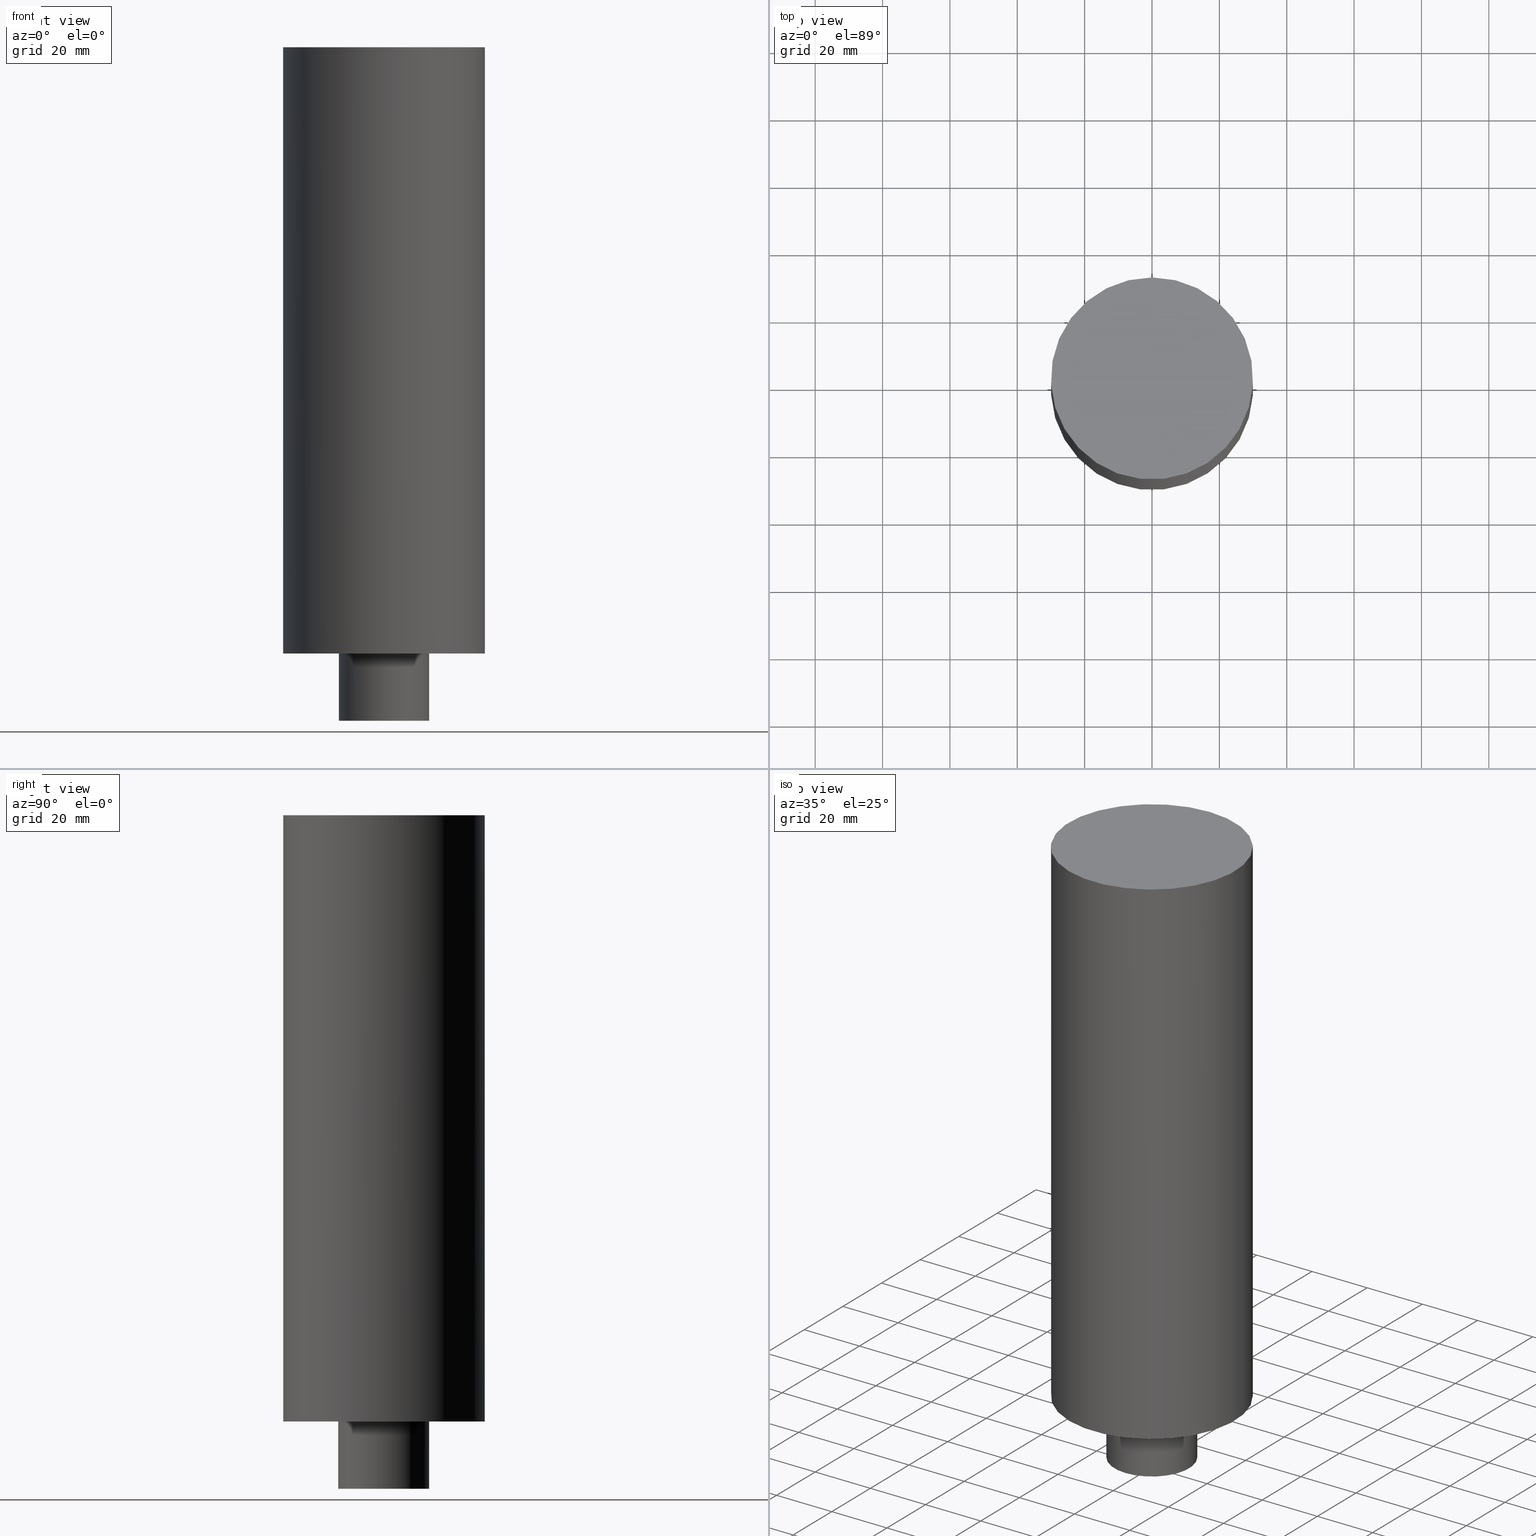
[diagram: canonical four-view strip — front | top / right | iso, engineering-drawing reading convention]
A machine part, canonical four-view strip (front | top / right | iso — engineering-drawing reading convention). The complete STEP part file that produces these views, byte-faithful:
ISO-10303-21;
HEADER;
FILE_DESCRIPTION((''),'1');
FILE_NAME('U:/Translate/BIG-HP/\X2\30C030A630F330ED30FC30C930C730FC30BF\X0\/201309/BT-BBT/BT-BBT50/10_\X2\9632632F6A5F69CB51858535FF7DFF8FFF70FF84FF80FF9EFF9DFF8AFF9FFF70\X0\/11_\X2\30D530A130A430B930DF30EB30A230FC30D0\X0\FM\X2\578B\X0\/02_\X2\FF7DFF8FFF70FF84FF80FF9EFF9DFF8AFF9FFF70FF80FF9EFF9DFF8AFF9FFF70FF8DFF6FFF84FF9E\X0\/SDF36-FMH27DP-60-180.stp','2013-10-16T08:40:45',(''),(''),'Spatial Interop R18','Kubotek KeyCreator V8.5.1 (14335)',' ');
FILE_SCHEMA(('CONFIG_CONTROL_DESIGN'));
ENDSEC;
DATA;
#1=DESIGN_CONTEXT('',#27,'design');
#2=APPLICATION_PROTOCOL_DEFINITION('INTERNATIONAL STANDARD','config_control_design',1994,#27);
#3=PRODUCT_CATEGORY_RELATIONSHIP('NONE','NONE',#28,#29);
#4=DATE_AND_TIME(#30,#31);
#5=DATE_TIME_ROLE('creation_date');
#6=DATE_TIME_ROLE('classification_date');
#7=PERSON_AND_ORGANIZATION_ROLE('creator');
#8=PERSON_AND_ORGANIZATION_ROLE('design_supplier');
#9=PERSON_AND_ORGANIZATION_ROLE('classification_officer');
#10=PERSON_AND_ORGANIZATION_ROLE('design_owner');
#11=APPROVAL_PERSON_ORGANIZATION(#32,#33,#34);
#12=APPROVAL_DATE_TIME(#4,#33);
#13=CC_DESIGN_APPROVAL(#33,(#35,#36,#37));
#14=CC_DESIGN_DATE_AND_TIME_ASSIGNMENT(#4,#5,(#37));
#15=CC_DESIGN_DATE_AND_TIME_ASSIGNMENT(#4,#6,(#35));
#16=CC_DESIGN_PERSON_AND_ORGANIZATION_ASSIGNMENT(#32,#10,(#38));
#17=CC_DESIGN_PERSON_AND_ORGANIZATION_ASSIGNMENT(#32,#7,(#37));
#18=CC_DESIGN_PERSON_AND_ORGANIZATION_ASSIGNMENT(#32,#7,(#36));
#19=CC_DESIGN_PERSON_AND_ORGANIZATION_ASSIGNMENT(#32,#8,(#36));
#20=CC_DESIGN_SECURITY_CLASSIFICATION(#35,(#36));
#21=CC_DESIGN_PERSON_AND_ORGANIZATION_ASSIGNMENT(#32,#9,(#35));
#22=SHAPE_DEFINITION_REPRESENTATION(#39,#40);
#23= (GEOMETRIC_REPRESENTATION_CONTEXT(3)GLOBAL_UNCERTAINTY_ASSIGNED_CONTEXT((#43))GLOBAL_UNIT_ASSIGNED_CONTEXT((#45,#46,#47))REPRESENTATION_CONTEXT('NONE','WORKSPACE'));
#27=APPLICATION_CONTEXT('CONFIGURATION CONTROLLED 3D DESIGNS OF MECHANICAL PARTS AND ASSEMBLIES');
#28=PRODUCT_CATEGORY('part','NONE');
#29=PRODUCT_RELATED_PRODUCT_CATEGORY('detail',' ',(#38));
#30=CALENDAR_DATE(2013,16,9);
#31=LOCAL_TIME(17,40,45.0,#49);
#32=PERSON_AND_ORGANIZATION(#50,#51);
#33=APPROVAL(#52,'SOLID MODEL');
#34=APPROVAL_ROLE('APPROVED');
#35=SECURITY_CLASSIFICATION('','',#53);
#36=PRODUCT_DEFINITION_FORMATION_WITH_SPECIFIED_SOURCE(' ','NONE',#38,.NOT_KNOWN.);
#37=PRODUCT_DEFINITION('NONE','NONE',#36,#1);
#38=PRODUCT('1','1','PART-1-DESC',(#54));
#39=PRODUCT_DEFINITION_SHAPE('NONE','NONE',#37);
#40=ADVANCED_BREP_SHAPE_REPRESENTATION('1',(#55,#56),#23);
#43=UNCERTAINTY_MEASURE_WITH_UNIT(LENGTH_MEASURE(1.0E-006),#45,'','');
#45= (CONVERSION_BASED_UNIT('MILLIMETRE',#59)LENGTH_UNIT()NAMED_UNIT(#62));
#46= (NAMED_UNIT(#64)PLANE_ANGLE_UNIT()SI_UNIT($,.RADIAN.));
#47= (NAMED_UNIT(#64)SOLID_ANGLE_UNIT()SI_UNIT($,.STERADIAN.));
#49=COORDINATED_UNIVERSAL_TIME_OFFSET(9,0,.AHEAD.);
#50=PERSON('','UNSPECIFIED',$,$,$,$);
#51=ORGANIZATION('UNSPECIFIED','UNSPECIFIED','UNSPECIFIED');
#52=APPROVAL_STATUS('approved');
#53=SECURITY_CLASSIFICATION_LEVEL('unclassified');
#54=MECHANICAL_CONTEXT('',#27,'mechanical');
#55=MANIFOLD_SOLID_BREP('1',#70);
#56=AXIS2_PLACEMENT_3D('',#71,#72,#73);
#59=LENGTH_MEASURE_WITH_UNIT(LENGTH_MEASURE(1.0),#74);
#62=DIMENSIONAL_EXPONENTS(1.0,0.0,0.0,0.0,0.0,0.0,0.0);
#64=DIMENSIONAL_EXPONENTS(0.0,0.0,0.0,0.0,0.0,0.0,0.0);
#70=CLOSED_SHELL('',(#75,#76,#77,#78,#79));
#71=CARTESIAN_POINT('',(0.0,0.0,0.0));
#72=DIRECTION('',(0.0,0.0,1.0));
#73=DIRECTION('',(1.0,0.0,0.0));
#74= (NAMED_UNIT(#62)LENGTH_UNIT()SI_UNIT(.MILLI.,.METRE.));
#75=ADVANCED_FACE('',(#81),#82,.T.);
#76=ADVANCED_FACE('',(#83,#84),#85,.T.);
#77=ADVANCED_FACE('',(#86,#87),#88,.T.);
#78=ADVANCED_FACE('',(#89,#90),#91,.T.);
#79=ADVANCED_FACE('',(#92),#93,.T.);
#81=FACE_OUTER_BOUND('',#94,.T.);
#82=PLANE('',#95);
#83=FACE_BOUND('',#96,.T.);
#84=FACE_BOUND('',#97,.T.);
#85=CYLINDRICAL_SURFACE('',#98,13.4999999868776);
#86=FACE_OUTER_BOUND('',#99,.T.);
#87=FACE_BOUND('',#100,.T.);
#88=PLANE('',#101);
#89=FACE_BOUND('',#102,.T.);
#90=FACE_BOUND('',#103,.T.);
#91=CYLINDRICAL_SURFACE('',#104,30.0);
#92=FACE_OUTER_BOUND('',#105,.T.);
#93=PLANE('',#106);
#94=EDGE_LOOP('',(#107));
#95=AXIS2_PLACEMENT_3D('',#108,#109,#110);
#96=EDGE_LOOP('',(#111));
#97=EDGE_LOOP('',(#112));
#98=AXIS2_PLACEMENT_3D('',#113,#114,#115);
#99=EDGE_LOOP('',(#116));
#100=EDGE_LOOP('',(#117));
#101=AXIS2_PLACEMENT_3D('',#118,#119,#120);
#102=EDGE_LOOP('',(#121));
#103=EDGE_LOOP('',(#122));
#104=AXIS2_PLACEMENT_3D('',#123,#124,#125);
#105=EDGE_LOOP('',(#126));
#106=AXIS2_PLACEMENT_3D('',#127,#128,#129);
#107=ORIENTED_EDGE('',*,*,#130,.F.);
#108=CARTESIAN_POINT('',(1.22464679914735E-014,6.74999999343881,-200.0));
#109=DIRECTION('',(6.12323399573677E-017,1.22464679914735E-016,-1.0));
#110=DIRECTION('',(1.23259516440783E-032,-1.0,-1.22464679914735E-016));
#111=ORIENTED_EDGE('',*,*,#131,.F.);
#112=ORIENTED_EDGE('',*,*,#130,.T.);
#113=CARTESIAN_POINT('',(1.16341445918999E-014,2.32682891837997E-014,-190.0));
#114=DIRECTION('',(6.12323399573676E-017,1.22464679914735E-016,-1.0));
#115=DIRECTION('',(-1.23259516440783E-032,1.0,1.22464679914735E-016));
#116=ORIENTED_EDGE('',*,*,#132,.F.);
#117=ORIENTED_EDGE('',*,*,#131,.T.);
#118=CARTESIAN_POINT('',(1.10218211923262E-014,21.7499999934388,-180.0));
#119=DIRECTION('',(6.12323399573677E-017,1.22464679914735E-016,-1.0));
#120=DIRECTION('',(1.23259516440783E-032,-1.0,-1.22464679914735E-016));
#121=ORIENTED_EDGE('',*,*,#133,.F.);
#122=ORIENTED_EDGE('',*,*,#132,.T.);
#123=CARTESIAN_POINT('',(5.51091059616309E-015,1.10218211923262E-014,-90.0));
#124=DIRECTION('',(6.12323399573677E-017,1.22464679914735E-016,-1.0));
#125=DIRECTION('',(-1.23259516440783E-032,1.0,1.22464679914735E-016));
#126=ORIENTED_EDGE('',*,*,#133,.T.);
#127=CARTESIAN_POINT('',(6.85274612344835E-031,15.0,-1.2373884516481E-014));
#128=DIRECTION('',(-6.12323399573677E-017,8.24925634432064E-016,1.0));
#129=DIRECTION('',(4.56849741563223E-032,1.0,-8.24925634432064E-016));
#130=EDGE_CURVE('',#134,#134,#135,.T.);
#131=EDGE_CURVE('',#136,#136,#137,.T.);
#132=EDGE_CURVE('',#138,#138,#139,.T.);
#133=EDGE_CURVE('',#140,#140,#141,.T.);
#134=VERTEX_POINT('',#142);
#135=CIRCLE('',#143,13.4999999868776);
#136=VERTEX_POINT('',#144);
#137=CIRCLE('',#145,13.4999999868776);
#138=VERTEX_POINT('',#146);
#139=CIRCLE('',#147,30.0);
#140=VERTEX_POINT('',#148);
#141=CIRCLE('',#149,30.0);
#142=CARTESIAN_POINT('',(1.22464679914735E-014,13.4999999868776,-200.0));
#143=AXIS2_PLACEMENT_3D('',#150,#151,#152);
#144=CARTESIAN_POINT('',(1.10218211923262E-014,13.4999999868776,-180.0));
#145=AXIS2_PLACEMENT_3D('',#153,#154,#155);
#146=CARTESIAN_POINT('',(1.10218211923262E-014,30.0,-180.0));
#147=AXIS2_PLACEMENT_3D('',#156,#157,#158);
#148=CARTESIAN_POINT('',(1.37054922468967E-030,30.0,-2.47477690329619E-014));
#149=AXIS2_PLACEMENT_3D('',#159,#160,#161);
#150=CARTESIAN_POINT('',(1.22464679914735E-014,2.44929359829471E-014,-200.0));
#151=DIRECTION('',(-6.12323399573676E-017,-1.22464679914735E-016,1.0));
#152=DIRECTION('',(-1.23259516440783E-032,1.0,1.22464679914735E-016));
#153=CARTESIAN_POINT('',(1.10218211923262E-014,2.20436423846524E-014,-180.0));
#154=DIRECTION('',(-6.12323399573676E-017,-1.22464679914735E-016,1.0));
#155=DIRECTION('',(-1.23259516440783E-032,1.0,1.22464679914735E-016));
#156=CARTESIAN_POINT('',(1.10218211923262E-014,2.20436423846524E-014,-180.0));
#157=DIRECTION('',(-6.12323399573677E-017,-1.22464679914735E-016,1.0));
#158=DIRECTION('',(-1.23259516440783E-032,1.0,1.22464679914735E-016));
#159=CARTESIAN_POINT('',(1.74032777401202E-030,3.48065554802404E-030,-2.8421709430404E-014));
#160=DIRECTION('',(-6.12323399573677E-017,-1.22464679914735E-016,1.0));
#161=DIRECTION('',(-1.23259516440783E-032,1.0,1.22464679914735E-016));
ENDSEC;
END-ISO-10303-21;
